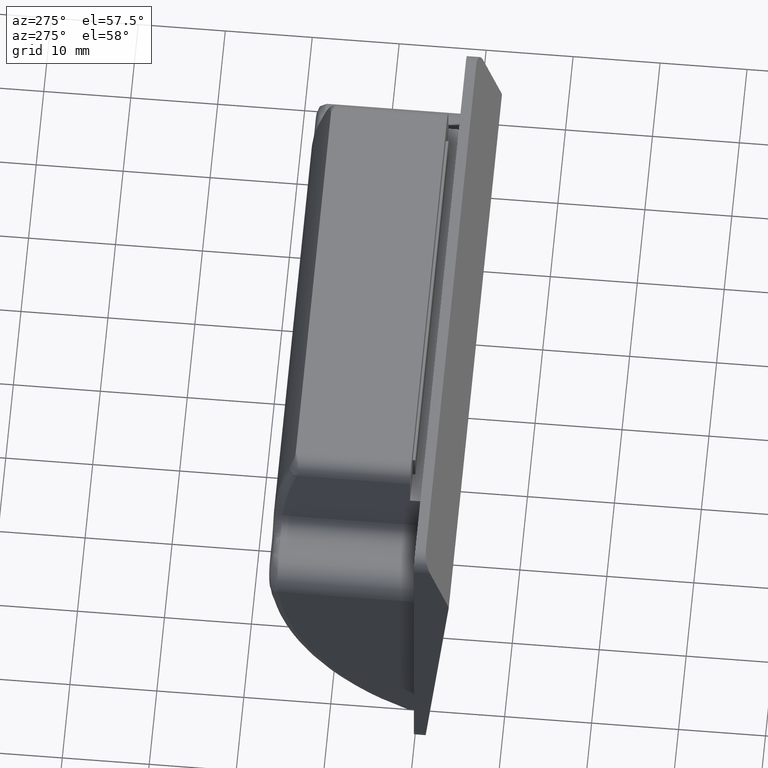
[diagram: clean part render]
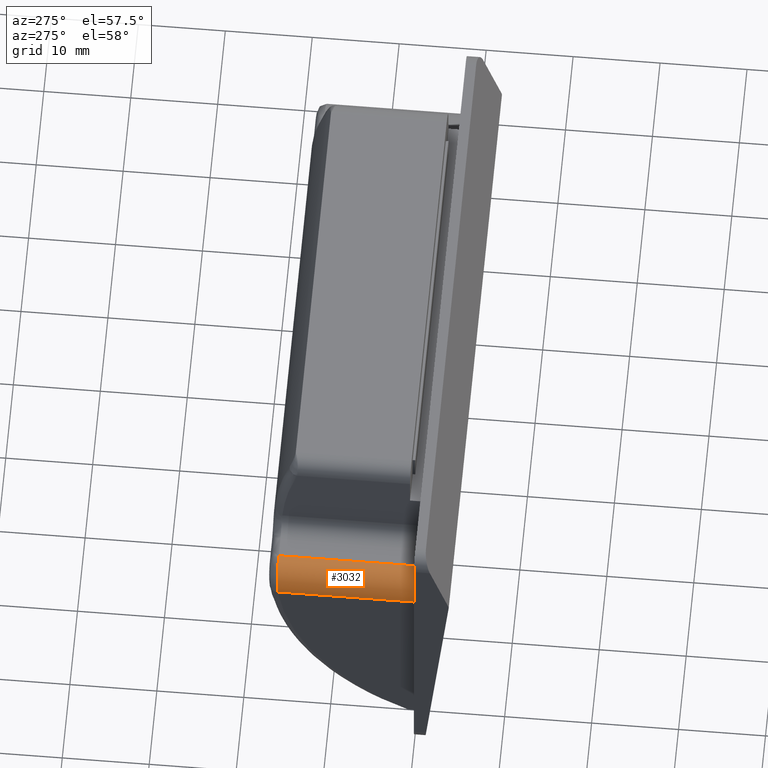
[diagram: same view with one face highlighted and labeled with its STEP entity id]
A machine part, auxiliary view. The second image highlights one B-rep face of the part: STEP entity #3032.
In plain terms, the highlighted cylindrical surface (edge-blend (fillet) strip) has radius 3 mm, axis along (0, -1, 0).
Its self-contained STEP definition (entity closure, byte-faithful):
#11 = ORIENTED_EDGE ( 'NONE', *, *, #879, .F. ) ;
#18 = EDGE_CURVE ( 'NONE', #3649, #656, #1339, .T. ) ;
#55 = DIRECTION ( 'NONE',  ( 0.0000000000000000000, -1.000000000000000000, 0.0000000000000000000 ) ) ;
#59 = FACE_OUTER_BOUND ( 'NONE', #3701, .T. ) ;
#128 = DIRECTION ( 'NONE',  ( 0.0000000000000000000, -1.000000000000000000, 0.0000000000000000000 ) ) ;
#360 = CARTESIAN_POINT ( 'NONE',  ( -30.00000000000000000, 1000.000000000000000, 6.749999999999920100 ) ) ;
#429 = CARTESIAN_POINT ( 'NONE',  ( -33.00000000000000000, 15.83882181415010100, 6.749999999999920100 ) ) ;
#573 = CARTESIAN_POINT ( 'NONE',  ( -30.00000000000000000, 15.98213715926644700, 9.750000000000000000 ) ) ;
#616 = VERTEX_POINT ( 'NONE', #2144 ) ;
#656 = VERTEX_POINT ( 'NONE', #429 ) ;
#797 = ORIENTED_EDGE ( 'NONE', *, *, #18, .T. ) ;
#879 = EDGE_CURVE ( 'NONE', #3649, #616, #1222, .T. ) ;
#1041 = VECTOR ( 'NONE', #3193, 1000.000000000000000 ) ;
#1222 = LINE ( 'NONE', #2932, #1041 ) ;
#1278 = CARTESIAN_POINT ( 'NONE',  ( -33.00000000000000000, 1000.000000000000000, 6.749999999999920100 ) ) ;
#1339 = B_SPLINE_CURVE_WITH_KNOTS ( 'NONE', 3,
 ( #2018, #1696, #1761, #1753, #1905, #2004, #2468, #2265, #2204, #2315 ),
 .UNSPECIFIED., .F., .F.,
 ( 4, 2, 2, 2, 4 ),
 ( 0.0000000000000000000, 0.2500000000000000000, 0.5000000000000000000, 0.7500000000000000000, 1.000000000000000000 ),
 .UNSPECIFIED. ) ;
#1443 = EDGE_CURVE ( 'NONE', #656, #2176, #3151, .T. ) ;
#1463 = EDGE_CURVE ( 'NONE', #616, #2176, #2110, .T. ) ;
#1516 = DIRECTION ( 'NONE',  ( 0.0000000000000000000, 0.0000000000000000000, -1.000000000000000000 ) ) ;
#1596 = DIRECTION ( 'NONE',  ( -0.0000000000000000000, -1.000000000000000000, -0.0000000000000000000 ) ) ;
#1696 = CARTESIAN_POINT ( 'NONE',  ( -30.45289234762194000, 15.98213638944282700, 9.749999999999918300 ) ) ;
#1753 = CARTESIAN_POINT ( 'NONE',  ( -31.65487607590719000, 15.96720636046934200, 9.287743365615357400 ) ) ;
#1761 = CARTESIAN_POINT ( 'NONE',  ( -30.88905108553486300, 15.97915007571880100, 9.646263866370596000 ) ) ;
#1868 = CARTESIAN_POINT ( 'NONE',  ( -33.00000000000000000, 0.0000000000000000000, 6.749999999999920100 ) ) ;
#1905 = CARTESIAN_POINT ( 'NONE',  ( -31.98461769397786700, 15.95824895894378900, 9.033748054737348100 ) ) ;
#1935 = ORIENTED_EDGE ( 'NONE', *, *, #1443, .T. ) ;
#2004 = CARTESIAN_POINT ( 'NONE',  ( -32.50556349488846300, 15.93436306809107500, 8.445984711561113300 ) ) ;
#2018 = CARTESIAN_POINT ( 'NONE',  ( -30.00000000000000000, 15.98213715926644700, 9.750000000000000000 ) ) ;
#2110 = CIRCLE ( 'NONE', #2489, 3.000000000000000000 ) ;
#2144 = CARTESIAN_POINT ( 'NONE',  ( -30.00000000000000000, 0.0000000000000000000, 9.750000000000000000 ) ) ;
#2176 = VERTEX_POINT ( 'NONE', #1868 ) ;
#2204 = CARTESIAN_POINT ( 'NONE',  ( -33.00000000000000000, 15.86270693517948000, 7.082505815775430600 ) ) ;
#2212 = VECTOR ( 'NONE', #128, 1000.000000000000000 ) ;
#2265 = CARTESIAN_POINT ( 'NONE',  ( -32.94412785965531800, 15.88360651230813800, 7.430875672815140800 ) ) ;
#2315 = CARTESIAN_POINT ( 'NONE',  ( -33.00000000000000000, 15.83882181415010100, 6.749999999999920100 ) ) ;
#2399 = ORIENTED_EDGE ( 'NONE', *, *, #1463, .F. ) ;
#2468 = CARTESIAN_POINT ( 'NONE',  ( -32.69712364979911700, 15.91943457876399400, 8.112719543238517500 ) ) ;
#2489 = AXIS2_PLACEMENT_3D ( 'NONE', #3286, #1596, #3592 ) ;
#2828 = CYLINDRICAL_SURFACE ( 'NONE', #3641, 3.000000000000000000 ) ;
#2932 = CARTESIAN_POINT ( 'NONE',  ( -30.00000000000000000, 1000.000000000000000, 9.750000000000000000 ) ) ;
#3032 = ADVANCED_FACE ( 'NONE', ( #59 ), #2828, .T. ) ;
#3151 = LINE ( 'NONE', #1278, #2212 ) ;
#3193 = DIRECTION ( 'NONE',  ( 0.0000000000000000000, -1.000000000000000000, 0.0000000000000000000 ) ) ;
#3286 = CARTESIAN_POINT ( 'NONE',  ( -30.00000000000000000, 0.0000000000000000000, 6.749999999999920100 ) ) ;
#3592 = DIRECTION ( 'NONE',  ( 0.0000000000000000000, 0.0000000000000000000, 1.000000000000000000 ) ) ;
#3641 = AXIS2_PLACEMENT_3D ( 'NONE', #360, #55, #1516 ) ;
#3649 = VERTEX_POINT ( 'NONE', #573 ) ;
#3701 = EDGE_LOOP ( 'NONE', ( #11, #797, #1935, #2399 ) ) ;